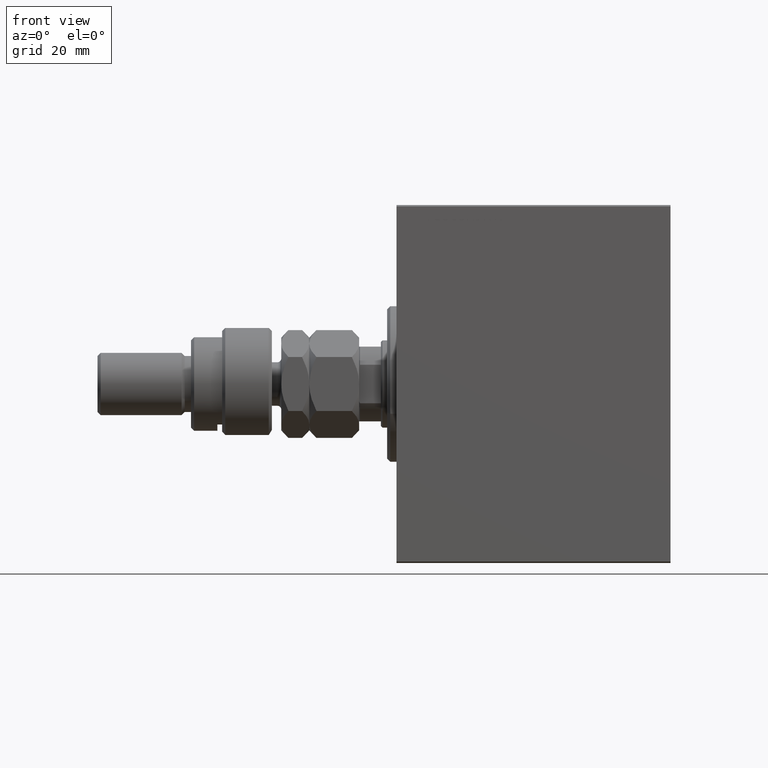
[diagram: clean part render]
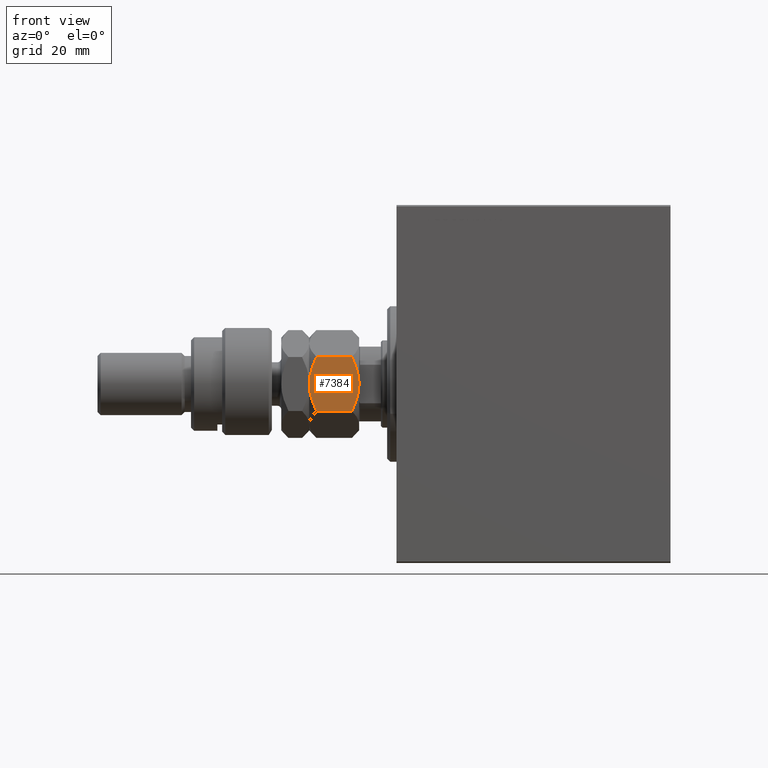
[diagram: same view with one face highlighted and labeled with its STEP entity id]
A machine part, front view. The second image highlights one B-rep face of the part: STEP entity #7384.
In plain terms, the highlighted planar face has unit normal (0, 1, -0).
Its self-contained STEP definition (entity closure, byte-faithful):
#1496 = EDGE_CURVE ( 'NONE', #24861, #36555, #3801, .T. ) ;
#1855 = EDGE_CURVE ( 'NONE', #36555, #36019, #13507, .T. ) ;
#3303 = PLANE ( 'NONE',  #30060 ) ;
#3727 = CARTESIAN_POINT ( 'NONE',  ( -3.416099238086855886E-15, -17.32050807568877104, 13.67949192431124317 ) ) ;
#3801 = LINE ( 'NONE', #14647, #38227 ) ;
#3961 = CARTESIAN_POINT ( 'NONE',  ( 4.881674457977372761, -14.50207201327941320, 15.71619733805371411 ) ) ;
#4864 = CARTESIAN_POINT ( 'NONE',  ( 8.823580389329300999, -12.22621156269320331, 0.05953537397470176629 ) ) ;
#5130 = ORIENTED_EDGE ( 'NONE', *, *, #6385, .F. ) ;
#5625 = CARTESIAN_POINT ( 'NONE',  ( 1.174746544192159625, -16.64226784216984711, 1.642267842169777836 ) ) ;
#6385 = EDGE_CURVE ( 'NONE', #33944, #13343, #29555, .T. ) ;
#6695 = B_SPLINE_CURVE_WITH_KNOTS ( 'NONE', 3,
 ( #34404, #27793, #23562, #31093, #5625, #30867 ),
 .UNSPECIFIED., .F., .F.,
 ( 4, 2, 4 ),
 ( 0.008977392552884455937, 0.01343452311421657053, 0.01789165367554868685 ),
 .UNSPECIFIED. ) ;
#6930 = ORIENTED_EDGE ( 'NONE', *, *, #1855, .F. ) ;
#7384 = ADVANCED_FACE ( 'NONE', ( #25016 ), #3303, .F. ) ;
#7708 = CARTESIAN_POINT ( 'NONE',  ( 7.499999999999993783, -12.99038105676658006, 16.00000000000000000 ) ) ;
#7728 = CARTESIAN_POINT ( 'NONE',  ( 4.247772349543483372, -14.86805556622359425, 15.55242859148698109 ) ) ;
#10543 = CARTESIAN_POINT ( 'NONE',  ( -2.796947266322166691E-15, -17.32050807568877104, 2.320508075688761718 ) ) ;
#11230 = CARTESIAN_POINT ( 'NONE',  ( 12.62116548881249756, -10.03367478323606754, 1.064486067744006892 ) ) ;
#11265 = CARTESIAN_POINT ( 'NONE',  ( 1.176108425306638505, -16.64148155974179488, 14.35851844025821755 ) ) ;
#11391 = CARTESIAN_POINT ( 'NONE',  ( -3.035766082959412415E-15, -17.32050807568877104, 16.00000000000000000 ) ) ;
#13343 = VERTEX_POINT ( 'NONE', #26965 ) ;
#13507 = B_SPLINE_CURVE_WITH_KNOTS ( 'NONE', 3,
 ( #43537, #40460, #11230, #40001, #44010, #4864, #43776, #46194 ),
 .UNSPECIFIED., .F., .F.,
 ( 4, 2, 2, 4 ),
 ( 2.544309033642853415E-07, 0.004488823491893907842, 0.006733108022389181456, 0.008977392552884455937 ),
 .UNSPECIFIED. ) ;
#14538 = ORIENTED_EDGE ( 'NONE', *, *, #1496, .F. ) ;
#14647 = CARTESIAN_POINT ( 'NONE',  ( 15.00000000000000000, -8.660254037844389075, 16.00000000000000000 ) ) ;
#15020 = CARTESIAN_POINT ( 'NONE',  ( 15.00000000000000000, -8.660254037844389075, 13.67949192431123961 ) ) ;
#18335 = CARTESIAN_POINT ( 'NONE',  ( 12.61607045183964360, -10.03661640420387080, 14.93952096862912171 ) ) ;
#18352 = CARTESIAN_POINT ( 'NONE',  ( 6.176419610670694560, -13.75455055083996214, 15.94046462602530312 ) ) ;
#18429 = DIRECTION ( 'NONE',  ( -0.000000000000000000, -0.000000000000000000, -1.000000000000000000 ) ) ;
#18637 = EDGE_CURVE ( 'NONE', #36019, #41614, #6695, .T. ) ;
#21404 = CARTESIAN_POINT ( 'NONE',  ( 7.499999999999994671, -12.99038105676658184, 0.000000000000000000 ) ) ;
#21435 = CARTESIAN_POINT ( 'NONE',  ( -3.416099238086855886E-15, -17.32050807568877104, 13.67949192431124317 ) ) ;
#21479 = CARTESIAN_POINT ( 'NONE',  ( -3.035766082959412415E-15, -17.32050807568877104, 16.00000000000000000 ) ) ;
#23562 = CARTESIAN_POINT ( 'NONE',  ( 4.913081180497406386, -14.48393933357810681, 0.2303299219392160313 ) ) ;
#24204 = EDGE_LOOP ( 'NONE', ( #6930, #14538, #27387, #5130, #39520, #40202 ) ) ;
#24501 = B_SPLINE_CURVE_WITH_KNOTS ( 'NONE', 3,
 ( #7708, #44245, #43787, #18335, #40470, #15020 ),
 .UNSPECIFIED., .F., .F.,
 ( 4, 2, 4 ),
 ( 0.008977392552884447263, 0.01343452311421656532, 0.01789165367554868338 ),
 .UNSPECIFIED. ) ;
#24861 = VERTEX_POINT ( 'NONE', #44566 ) ;
#25016 = FACE_OUTER_BOUND ( 'NONE', #24204, .T. ) ;
#25799 = LINE ( 'NONE', #11391, #26234 ) ;
#26234 = VECTOR ( 'NONE', #33569, 1000.000000000000000 ) ;
#26965 = CARTESIAN_POINT ( 'NONE',  ( 7.499999999999993783, -12.99038105676658006, 16.00000000000000000 ) ) ;
#27387 = ORIENTED_EDGE ( 'NONE', *, *, #40772, .F. ) ;
#27793 = CARTESIAN_POINT ( 'NONE',  ( 6.195449321423083688, -13.74356374221447119, -1.770863548392988866E-15 ) ) ;
#29555 = B_SPLINE_CURVE_WITH_KNOTS ( 'NONE', 3,
 ( #21435, #11265, #32741, #7728, #3961, #18352, #35784, #32277 ),
 .UNSPECIFIED., .F., .F.,
 ( 4, 2, 2, 4 ),
 ( 2.544309033646407248E-07, 0.004488823491893905240, 0.006733108022389175384, 0.008977392552884447263 ),
 .UNSPECIFIED. ) ;
#30060 = AXIS2_PLACEMENT_3D ( 'NONE', #21479, #31862, #39143 ) ;
#30867 = CARTESIAN_POINT ( 'NONE',  ( -2.796947266322166691E-15, -17.32050807568877104, 2.320508075688761718 ) ) ;
#31093 = CARTESIAN_POINT ( 'NONE',  ( 2.383929548160349299, -15.94414570932928576, 1.060479031370876957 ) ) ;
#31862 = DIRECTION ( 'NONE',  ( -0.4999999999999996669, 0.8660254037844388186, 0.000000000000000000 ) ) ;
#32277 = CARTESIAN_POINT ( 'NONE',  ( 7.499999999999993783, -12.99038105676658006, 16.00000000000000000 ) ) ;
#32741 = CARTESIAN_POINT ( 'NONE',  ( 2.378834511187501111, -15.94708733029709791, 14.93551393225600066 ) ) ;
#33569 = DIRECTION ( 'NONE',  ( -0.000000000000000000, -0.000000000000000000, -1.000000000000000000 ) ) ;
#33944 = VERTEX_POINT ( 'NONE', #3727 ) ;
#34404 = CARTESIAN_POINT ( 'NONE',  ( 7.499999999999994671, -12.99038105676658184, 0.000000000000000000 ) ) ;
#35784 = CARTESIAN_POINT ( 'NONE',  ( 6.843123817691747490, -13.36962869744650284, 16.00000000000000711 ) ) ;
#36019 = VERTEX_POINT ( 'NONE', #21404 ) ;
#36555 = VERTEX_POINT ( 'NONE', #43013 ) ;
#38227 = VECTOR ( 'NONE', #18429, 1000.000000000000000 ) ;
#39143 = DIRECTION ( 'NONE',  ( -0.8660254037844388186, -0.4999999999999996669, 0.000000000000000000 ) ) ;
#39520 = ORIENTED_EDGE ( 'NONE', *, *, #43254, .T. ) ;
#40001 = CARTESIAN_POINT ( 'NONE',  ( 10.75222765045651308, -11.11270654730956586, 0.4475714085130263475 ) ) ;
#40202 = ORIENTED_EDGE ( 'NONE', *, *, #18637, .F. ) ;
#40460 = CARTESIAN_POINT ( 'NONE',  ( 13.82389157469335750, -9.339280553791367012, 1.641481559741792884 ) ) ;
#40470 = CARTESIAN_POINT ( 'NONE',  ( 13.82525345580783416, -9.338494271363316557, 14.35773215783021861 ) ) ;
#40772 = EDGE_CURVE ( 'NONE', #13343, #24861, #24501, .T. ) ;
#41614 = VERTEX_POINT ( 'NONE', #10543 ) ;
#43013 = CARTESIAN_POINT ( 'NONE',  ( 15.00000000000000000, -8.660254037844389075, 2.320508075688767047 ) ) ;
#43254 = EDGE_CURVE ( 'NONE', #33944, #41614, #25799, .T. ) ;
#43537 = CARTESIAN_POINT ( 'NONE',  ( 15.00000000000000000, -8.660254037844389075, 2.320508075688767047 ) ) ;
#43776 = CARTESIAN_POINT ( 'NONE',  ( 8.156876182308243628, -12.61113341608666083, -1.722865014715246890E-15 ) ) ;
#43787 = CARTESIAN_POINT ( 'NONE',  ( 10.08691881950258917, -11.49682277995505331, 15.76967007806078591 ) ) ;
#44010 = CARTESIAN_POINT ( 'NONE',  ( 10.11832554202262102, -11.47869010025374870, 0.2838026619462938327 ) ) ;
#44245 = CARTESIAN_POINT ( 'NONE',  ( 8.804550678576907430, -12.23719837131869248, 16.00000000000000000 ) ) ;
#44566 = CARTESIAN_POINT ( 'NONE',  ( 15.00000000000000000, -8.660254037844389075, 13.67949192431123961 ) ) ;
#46194 = CARTESIAN_POINT ( 'NONE',  ( 7.499999999999994671, -12.99038105676658184, 0.000000000000000000 ) ) ;